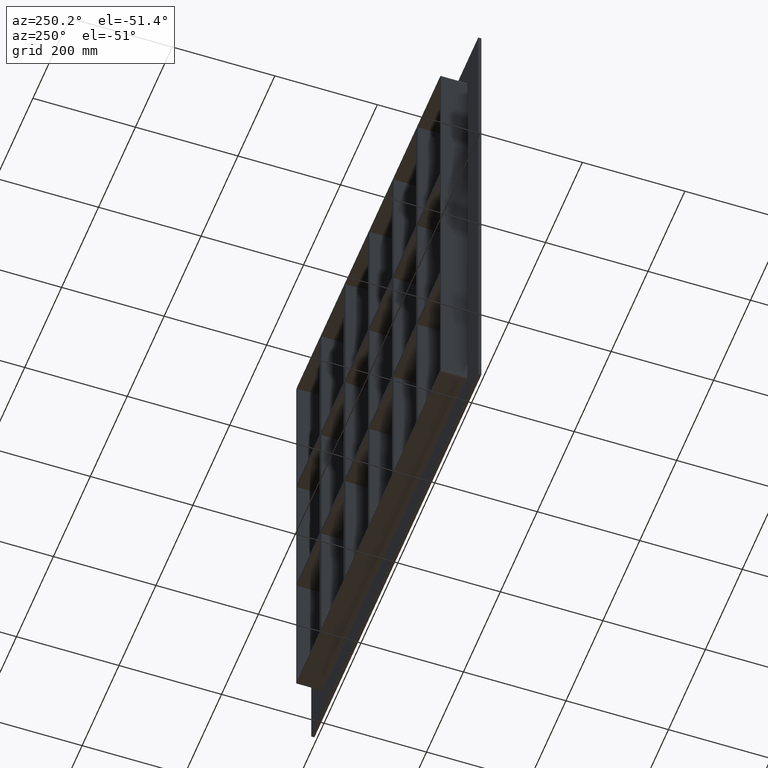
[diagram: clean part render]
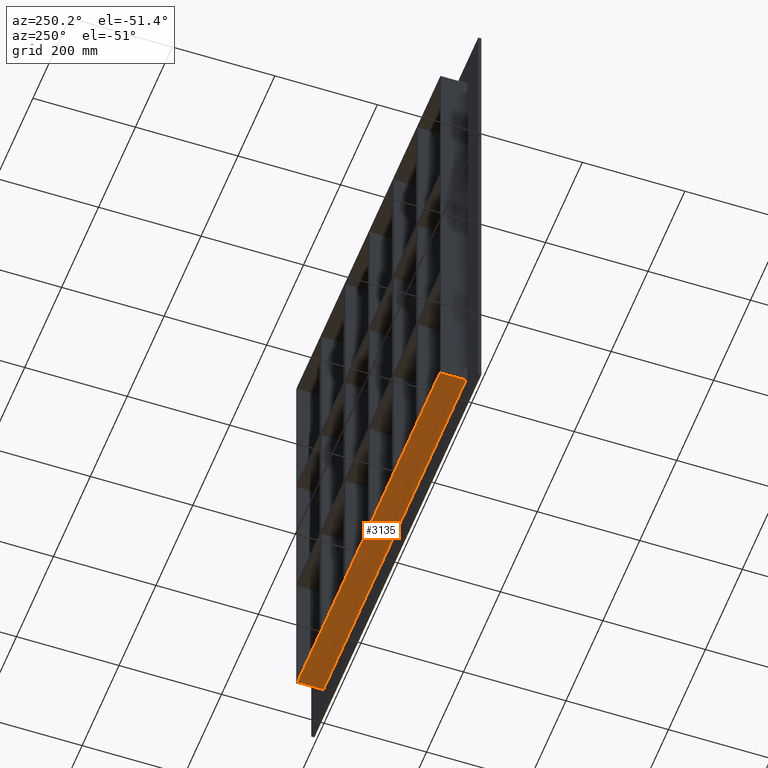
[diagram: same view with one face highlighted and labeled with its STEP entity id]
A machine part, auxiliary view. The second image highlights one B-rep face of the part: STEP entity #3135.
In plain terms, the highlighted planar face has unit normal (0, 0, -1).
Its self-contained STEP definition (entity closure, byte-faithful):
#987=CARTESIAN_POINT('',(386.50000000000006,57.0,-435.0));
#988=VERTEX_POINT('',#987);
#998=CARTESIAN_POINT('',(-386.50000000000006,57.0,-435.0));
#999=VERTEX_POINT('',#998);
#1000=CARTESIAN_POINT('',(386.50000000000006,57.0,-435.0));
#1001=DIRECTION('',(-1.0,0.0,0.0));
#1002=VECTOR('',#1001,773.0);
#1003=LINE('',#1000,#1002);
#1004=EDGE_CURVE('',#988,#999,#1003,.T.);
#2695=CARTESIAN_POINT('',(-386.50000000000006,6.000000000000001,-435.0));
#2696=VERTEX_POINT('',#2695);
#2706=CARTESIAN_POINT('',(386.50000000000006,6.000000000000001,-435.0));
#2707=VERTEX_POINT('',#2706);
#2708=CARTESIAN_POINT('',(386.50000000000006,6.000000000000001,-435.0));
#2709=DIRECTION('',(-1.0,0.0,0.0));
#2710=VECTOR('',#2709,773.0);
#2711=LINE('',#2708,#2710);
#2712=EDGE_CURVE('',#2707,#2696,#2711,.T.);
#3074=CARTESIAN_POINT('',(386.50000000000006,6.000000000000001,-435.0));
#3075=DIRECTION('',(0.0,1.0,0.0));
#3076=VECTOR('',#3075,51.0);
#3077=LINE('',#3074,#3076);
#3078=EDGE_CURVE('',#2707,#988,#3077,.T.);
#3119=CARTESIAN_POINT('',(392.5,0.0,-435.0));
#3120=DIRECTION('',(0.0,0.0,-1.0));
#3121=DIRECTION('',(-1.0,0.0,0.0));
#3122=AXIS2_PLACEMENT_3D('',#3119,#3120,#3121);
#3123=PLANE('',#3122);
#3124=ORIENTED_EDGE('',*,*,#2712,.T.);
#3125=CARTESIAN_POINT('',(-386.50000000000006,57.0,-435.0));
#3126=DIRECTION('',(0.0,-1.0,0.0));
#3127=VECTOR('',#3126,51.0);
#3128=LINE('',#3125,#3127);
#3129=EDGE_CURVE('',#999,#2696,#3128,.T.);
#3130=ORIENTED_EDGE('',*,*,#3129,.F.);
#3131=ORIENTED_EDGE('',*,*,#1004,.F.);
#3132=ORIENTED_EDGE('',*,*,#3078,.F.);
#3133=EDGE_LOOP('',(#3124,#3130,#3131,#3132));
#3134=FACE_OUTER_BOUND('',#3133,.T.);
#3135=ADVANCED_FACE('',(#3134),#3123,.T.);